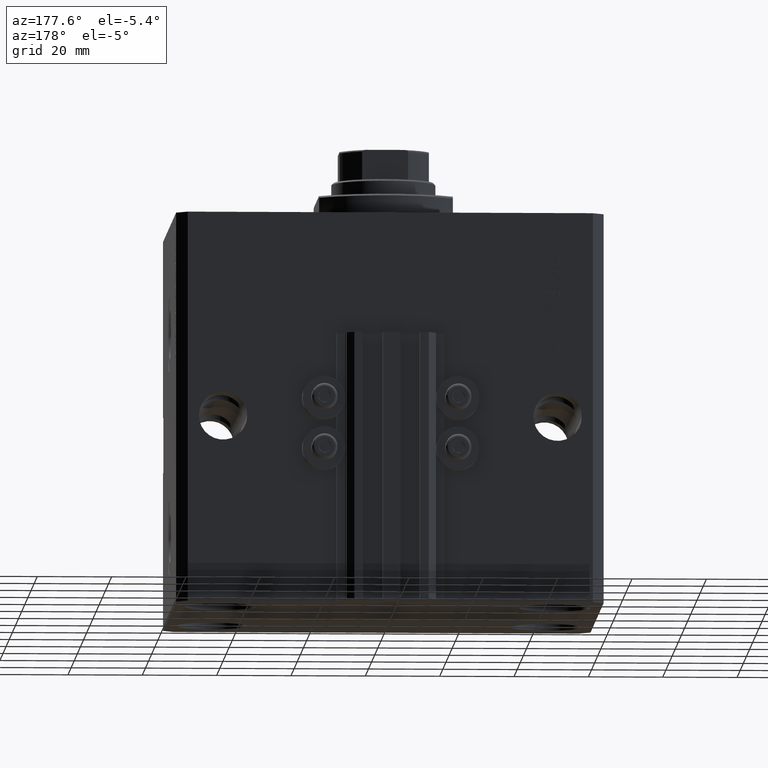
[diagram: clean part render]
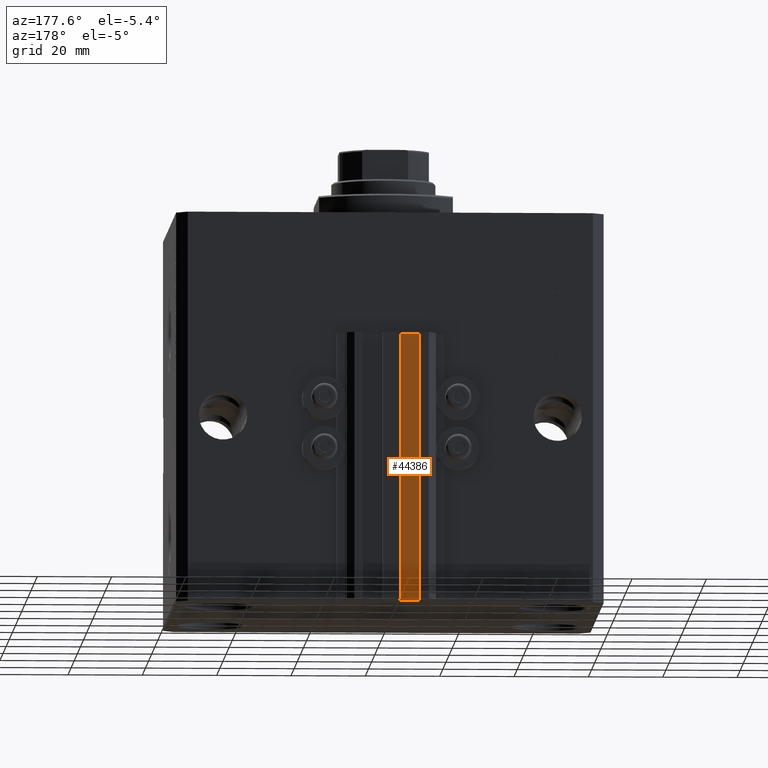
[diagram: same view with one face highlighted and labeled with its STEP entity id]
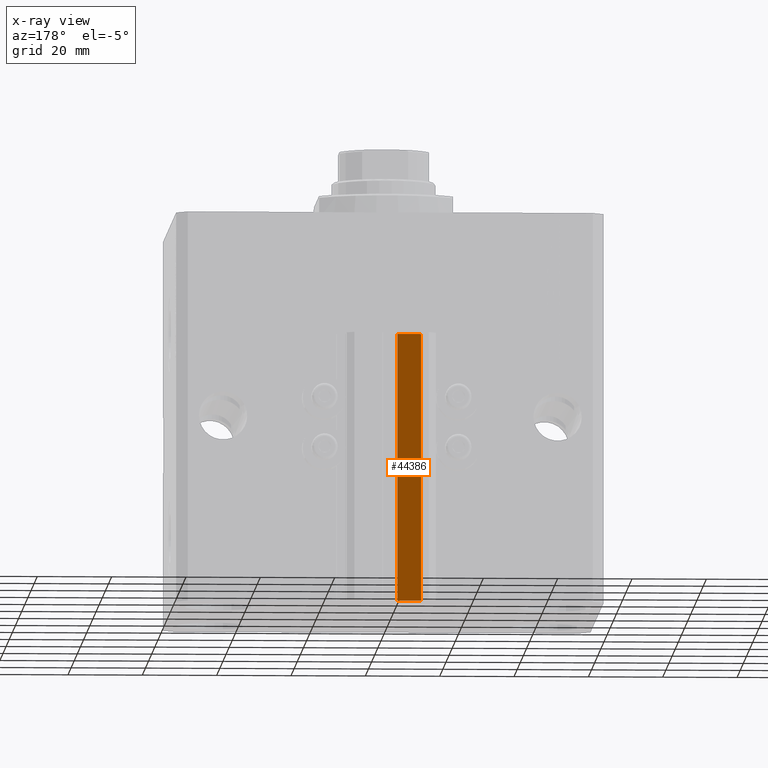
[diagram: x-ray of the same camera — body ghosted, the highlighted face saturated]
A machine part, auxiliary view. The second image highlights one B-rep face of the part: STEP entity #44386.
The next image is the same camera in x-ray: the body ghosted, the highlighted face saturated — about 0% of this face is hidden behind the body in this view.
In plain terms, the highlighted planar face has unit normal (0, 1, 0).
Its self-contained STEP definition (entity closure, byte-faithful):
#234 = CARTESIAN_POINT ( 'NONE',  ( -8.199999999999997513, 46.99999999999999289, -33.00000000000000000 ) ) ;
#763 = CARTESIAN_POINT ( 'NONE',  ( -1.800000000000000933, 46.99999999999999289, -33.00000000000000000 ) ) ;
#3112 = VECTOR ( 'NONE', #37271, 1000.000000000000000 ) ;
#3300 = CARTESIAN_POINT ( 'NONE',  ( -1.800000000000000933, 46.99999999999999289, -105.0000000000000000 ) ) ;
#3883 = VECTOR ( 'NONE', #46154, 1000.000000000000000 ) ;
#5225 = VECTOR ( 'NONE', #45655, 1000.000000000000000 ) ;
#5841 = VERTEX_POINT ( 'NONE', #234 ) ;
#7739 = EDGE_CURVE ( 'NONE', #29864, #18127, #39173, .T. ) ;
#7990 = CARTESIAN_POINT ( 'NONE',  ( -1.800000000000000933, 46.99999999999999289, -105.0000000000000000 ) ) ;
#11241 = DIRECTION ( 'NONE',  ( 0.000000000000000000, 0.000000000000000000, 1.000000000000000000 ) ) ;
#11836 = ORIENTED_EDGE ( 'NONE', *, *, #43717, .T. ) ;
#12069 = CARTESIAN_POINT ( 'NONE',  ( -1.800000000000000933, 46.99999999999999289, -105.0000000000000000 ) ) ;
#12283 = VERTEX_POINT ( 'NONE', #16596 ) ;
#12653 = ORIENTED_EDGE ( 'NONE', *, *, #7739, .F. ) ;
#16596 = CARTESIAN_POINT ( 'NONE',  ( -8.199999999999997513, 46.99999999999999289, -105.0000000000000000 ) ) ;
#18127 = VERTEX_POINT ( 'NONE', #763 ) ;
#18394 = PLANE ( 'NONE',  #37739 ) ;
#23796 = ORIENTED_EDGE ( 'NONE', *, *, #47600, .F. ) ;
#26370 = DIRECTION ( 'NONE',  ( -1.000000000000000000, 0.000000000000000000, 0.000000000000000000 ) ) ;
#26860 = LINE ( 'NONE', #41868, #44133 ) ;
#29864 = VERTEX_POINT ( 'NONE', #12069 ) ;
#33397 = DIRECTION ( 'NONE',  ( 0.000000000000000000, 1.000000000000000000, -0.000000000000000000 ) ) ;
#33638 = CARTESIAN_POINT ( 'NONE',  ( -1.800000000000000933, 46.99999999999999289, -105.0000000000000000 ) ) ;
#37271 = DIRECTION ( 'NONE',  ( -1.000000000000000000, 0.000000000000000000, 0.000000000000000000 ) ) ;
#37739 = AXIS2_PLACEMENT_3D ( 'NONE', #33638, #33397, #11241 ) ;
#39173 = LINE ( 'NONE', #7990, #5225 ) ;
#41411 = ORIENTED_EDGE ( 'NONE', *, *, #43387, .T. ) ;
#41426 = EDGE_LOOP ( 'NONE', ( #23796, #12653, #11836, #41411 ) ) ;
#41868 = CARTESIAN_POINT ( 'NONE',  ( -1.800000000000000933, 46.99999999999999289, -33.00000000000000000 ) ) ;
#42463 = CARTESIAN_POINT ( 'NONE',  ( -8.199999999999997513, 46.99999999999999289, -105.0000000000000000 ) ) ;
#43387 = EDGE_CURVE ( 'NONE', #12283, #5841, #44468, .T. ) ;
#43717 = EDGE_CURVE ( 'NONE', #29864, #12283, #48605, .T. ) ;
#44133 = VECTOR ( 'NONE', #26370, 1000.000000000000000 ) ;
#44386 = ADVANCED_FACE ( 'NONE', ( #48669 ), #18394, .T. ) ;
#44468 = LINE ( 'NONE', #42463, #3883 ) ;
#45655 = DIRECTION ( 'NONE',  ( 0.000000000000000000, 0.000000000000000000, 1.000000000000000000 ) ) ;
#46154 = DIRECTION ( 'NONE',  ( 0.000000000000000000, 0.000000000000000000, 1.000000000000000000 ) ) ;
#47600 = EDGE_CURVE ( 'NONE', #18127, #5841, #26860, .T. ) ;
#48605 = LINE ( 'NONE', #3300, #3112 ) ;
#48669 = FACE_OUTER_BOUND ( 'NONE', #41426, .T. ) ;